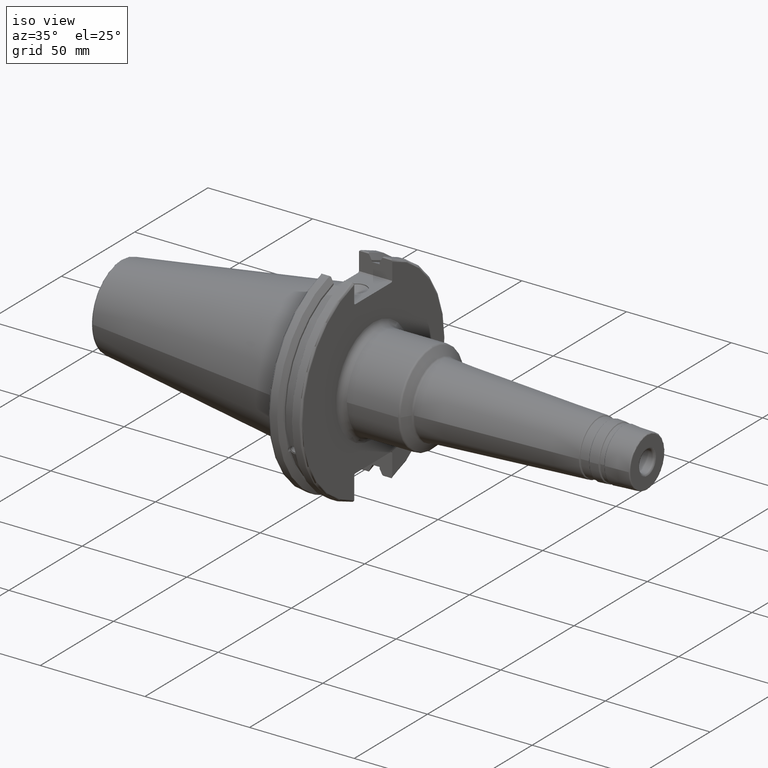
[diagram: clean part render]
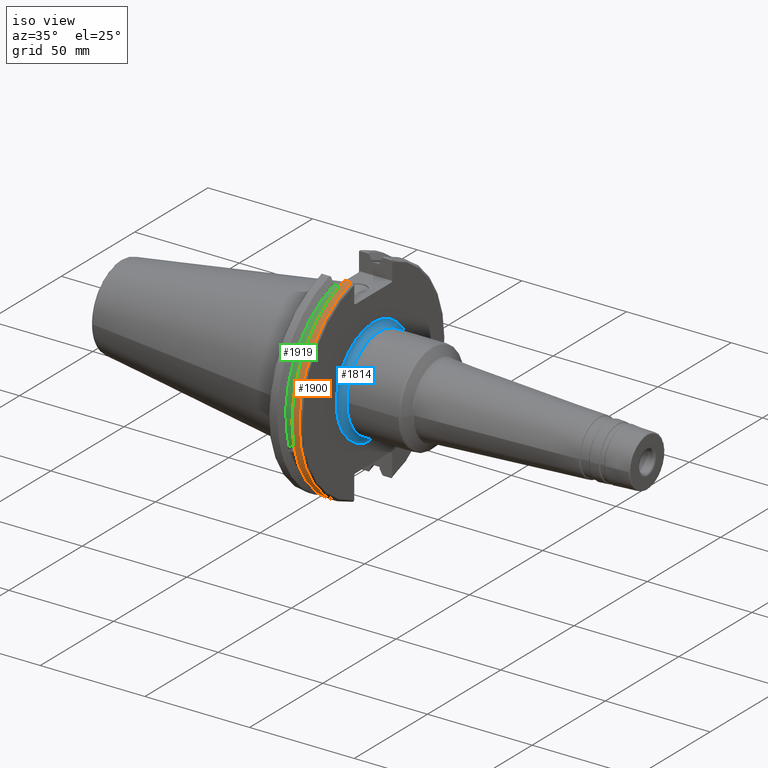
[diagram: same view with three faces highlighted in distinct colors, each labeled with its STEP entity id]
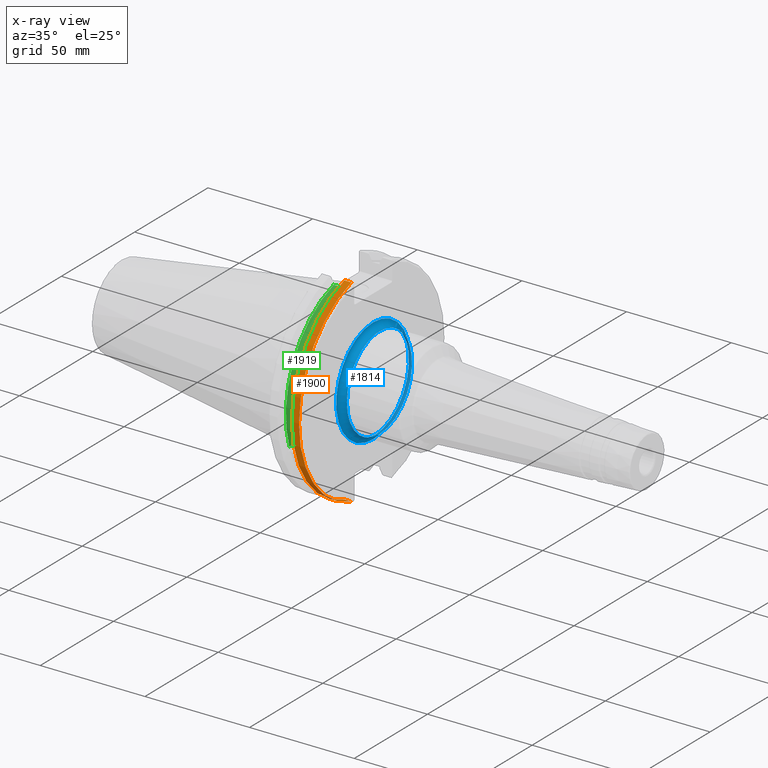
[diagram: x-ray of the same camera — body ghosted, the three highlighted faces saturated]
A machine part, iso view with three faces highlighted in distinct colors.
The next image is the same camera in x-ray (body ghosted, the three faces saturated) — at least one of them is partly hidden behind the body in this view.
Their STEP definitions:

[orange] entity #1900 — the highlighted cylindrical surface (partial cylindrical patch) has radius 49.2125 mm, axis along (1, 0, 0).
#245=LINE('',#3764,#348);
#246=LINE('',#3766,#349);
#348=VECTOR('',#2684,10.);
#349=VECTOR('',#2687,10.);
#378=CYLINDRICAL_SURFACE('',#2148,49.2125);
#471=FACE_OUTER_BOUND('',#596,.T.);
#596=EDGE_LOOP('',(#1704,#1705,#1706,#1707));
#697=CIRCLE('',#2065,49.2125);
#725=CIRCLE('',#2120,49.2125);
#841=VERTEX_POINT('',#3232);
#842=VERTEX_POINT('',#3236);
#906=VERTEX_POINT('',#3607);
#907=VERTEX_POINT('',#3616);
#1067=EDGE_CURVE('',#842,#841,#697,.T.);
#1156=EDGE_CURVE('',#906,#907,#725,.T.);
#1202=EDGE_CURVE('',#907,#841,#245,.T.);
#1203=EDGE_CURVE('',#842,#906,#246,.T.);
#1704=ORIENTED_EDGE('',*,*,#1156,.F.);
#1705=ORIENTED_EDGE('',*,*,#1203,.F.);
#1706=ORIENTED_EDGE('',*,*,#1067,.T.);
#1707=ORIENTED_EDGE('',*,*,#1202,.F.);
#1900=ADVANCED_FACE('',(#471),#378,.T.);
#2065=AXIS2_PLACEMENT_3D('',#3237,#2460,#2461);
#2120=AXIS2_PLACEMENT_3D('',#3617,#2605,#2606);
#2148=AXIS2_PLACEMENT_3D('',#3765,#2685,#2686);
#2460=DIRECTION('center_axis',(1.,0.,0.));
#2461=DIRECTION('ref_axis',(0.,0.,-1.));
#2605=DIRECTION('center_axis',(1.,0.,0.));
#2606=DIRECTION('ref_axis',(0.,-1.,1.60812264967664E-16));
#2684=DIRECTION('',(-1.,0.,0.));
#2685=DIRECTION('center_axis',(1.,0.,0.));
#2686=DIRECTION('ref_axis',(0.,-1.,1.22464679914735E-16));
#2687=DIRECTION('',(1.,0.,0.));
#3232=CARTESIAN_POINT('',(14.6602090340487,-13.4317035994433,-47.3440544806494));
#3236=CARTESIAN_POINT('',(14.6602090340487,-13.4317035994433,47.3440544806494));
#3237=CARTESIAN_POINT('Origin',(14.6602090340487,0.,0.));
#3607=CARTESIAN_POINT('',(18.05,-13.4317035994433,47.3440544806494));
#3616=CARTESIAN_POINT('',(18.05,-13.4317035994433,-47.3440544806494));
#3617=CARTESIAN_POINT('Origin',(18.05,0.,0.));
#3764=CARTESIAN_POINT('',(16.8551045170244,-13.4317035994433,-47.3440544806494));
#3765=CARTESIAN_POINT('Origin',(16.8551045170244,0.,0.));
#3766=CARTESIAN_POINT('',(16.8551045170244,-13.4317035994433,47.3440544806494));

[blue] entity #1814 — the highlighted toroidal blend (fillet) surface has major radius 25.25 mm and minor (blend) radius 3 mm.
#385=FACE_OUTER_BOUND('',#492,.T.);
#492=EDGE_LOOP('',(#1223,#1224,#1225,#1226,#1227));
#619=CIRCLE('',#1945,22.25);
#620=CIRCLE('',#1946,3.);
#621=CIRCLE('',#1947,25.25);
#622=CIRCLE('',#1948,22.25);
#746=VERTEX_POINT('',#2759);
#747=VERTEX_POINT('',#2760);
#748=VERTEX_POINT('',#2762);
#937=EDGE_CURVE('',#746,#747,#619,.T.);
#938=EDGE_CURVE('',#747,#748,#620,.T.);
#939=EDGE_CURVE('',#748,#748,#621,.T.);
#940=EDGE_CURVE('',#747,#746,#622,.T.);
#1223=ORIENTED_EDGE('',*,*,#937,.T.);
#1224=ORIENTED_EDGE('',*,*,#938,.T.);
#1225=ORIENTED_EDGE('',*,*,#939,.T.);
#1226=ORIENTED_EDGE('',*,*,#938,.F.);
#1227=ORIENTED_EDGE('',*,*,#940,.T.);
#1795=TOROIDAL_SURFACE('',#1944,25.25,3.);
#1814=ADVANCED_FACE('',(#385),#1795,.F.);
#1944=AXIS2_PLACEMENT_3D('',#2758,#2182,#2183);
#1945=AXIS2_PLACEMENT_3D('',#2761,#2184,#2185);
#1946=AXIS2_PLACEMENT_3D('',#2763,#2186,#2187);
#1947=AXIS2_PLACEMENT_3D('',#2764,#2188,#2189);
#1948=AXIS2_PLACEMENT_3D('',#2765,#2190,#2191);
#2182=DIRECTION('center_axis',(-1.,0.,0.));
#2183=DIRECTION('ref_axis',(0.,0.,1.));
#2184=DIRECTION('center_axis',(-1.,0.,0.));
#2185=DIRECTION('ref_axis',(0.,-1.,-1.22464679914735E-16));
#2186=DIRECTION('center_axis',(0.,-1.,1.22464679914735E-16));
#2187=DIRECTION('ref_axis',(0.,-1.22464679914735E-16,-1.));
#2188=DIRECTION('center_axis',(1.,0.,0.));
#2189=DIRECTION('ref_axis',(0.,-1.,-1.22464679914735E-16));
#2190=DIRECTION('center_axis',(-1.,0.,0.));
#2191=DIRECTION('ref_axis',(0.,-1.,-1.22464679914735E-16));
#2758=CARTESIAN_POINT('Origin',(22.05,0.,0.));
#2759=CARTESIAN_POINT('',(22.05,-22.25,-2.72483912810286E-15));
#2760=CARTESIAN_POINT('',(22.05,-2.72483912810286E-15,-22.25));
#2761=CARTESIAN_POINT('Origin',(22.05,0.,0.));
#2762=CARTESIAN_POINT('',(19.05,-3.09223316784707E-15,-25.25));
#2763=CARTESIAN_POINT('Origin',(22.05,-3.09223316784707E-15,-25.25));
#2764=CARTESIAN_POINT('Origin',(19.05,0.,0.));
#2765=CARTESIAN_POINT('Origin',(22.05,0.,0.));

[green] entity #1919 — the highlighted cylindrical surface (partial cylindrical patch) has radius 45.6435 mm, axis along (1, 0, 0).
#42=B_SPLINE_CURVE_WITH_KNOTS('',3,(#3150,#3151,#3152,#3153,#3154,#3155,
#3156,#3157,#3158,#3159,#3160,#3161,#3162,#3163),.UNSPECIFIED.,.F.,.F.,
(4,2,2,2,2,2,4),(0.40154831257669,0.474697095495631,0.553813286063443,0.632929476631254,
0.712045667199066,0.791161857766877,0.864310640685818),.UNSPECIFIED.);
#225=LINE('',#3644,#328);
#328=VECTOR('',#2612,10.);
#384=CYLINDRICAL_SURFACE('',#2177,45.6435);
#490=FACE_OUTER_BOUND('',#617,.T.);
#617=EDGE_LOOP('',(#1787,#1788,#1789,#1790));
#744=CIRCLE('',#2176,45.6435);
#745=CIRCLE('',#2178,45.6435);
#827=VERTEX_POINT('',#3147);
#828=VERTEX_POINT('',#3149);
#911=VERTEX_POINT('',#3641);
#912=VERTEX_POINT('',#3643);
#1050=EDGE_CURVE('',#828,#827,#42,.T.);
#1163=EDGE_CURVE('',#912,#911,#225,.T.);
#1221=EDGE_CURVE('',#911,#828,#744,.T.);
#1222=EDGE_CURVE('',#912,#827,#745,.T.);
#1787=ORIENTED_EDGE('',*,*,#1050,.T.);
#1788=ORIENTED_EDGE('',*,*,#1222,.F.);
#1789=ORIENTED_EDGE('',*,*,#1163,.T.);
#1790=ORIENTED_EDGE('',*,*,#1221,.T.);
#1919=ADVANCED_FACE('',(#490),#384,.T.);
#2176=AXIS2_PLACEMENT_3D('',#3810,#2749,#2750);
#2177=AXIS2_PLACEMENT_3D('',#3811,#2751,#2752);
#2178=AXIS2_PLACEMENT_3D('',#3812,#2753,#2754);
#2612=DIRECTION('',(-1.,0.,0.));
#2749=DIRECTION('center_axis',(1.,0.,0.));
#2750=DIRECTION('ref_axis',(0.,0.,-1.));
#2751=DIRECTION('center_axis',(1.,0.,0.));
#2752=DIRECTION('ref_axis',(0.,-0.888619069115281,0.458645996390125));
#2753=DIRECTION('center_axis',(1.,0.,0.));
#2754=DIRECTION('ref_axis',(0.,0.,-1.));
#3147=CARTESIAN_POINT('',(13.0491,-43.1779814500336,-14.7983448449669));
#3149=CARTESIAN_POINT('',(9.2191,-43.1779814500336,-14.7983448449669));
#3150=CARTESIAN_POINT('Ctrl Pts',(9.2191,-43.1779814500335,-14.7983448449669));
#3151=CARTESIAN_POINT('Ctrl Pts',(9.32532177598176,-43.2545173750974,-14.5750315766731));
#3152=CARTESIAN_POINT('Ctrl Pts',(9.47680807557665,-43.3223492818373,-14.3712521044637));
#3153=CARTESIAN_POINT('Ctrl Pts',(9.83560503400179,-43.4340904392251,-14.0300988117073));
#3154=CARTESIAN_POINT('Ctrl Pts',(10.0717203280543,-43.4832903960863,-13.8760243976176));
#3155=CARTESIAN_POINT('Ctrl Pts',(10.5891059167872,-43.54802519266,-13.6715068146718));
#3156=CARTESIAN_POINT('Ctrl Pts',(10.870379364774,-43.5636826100883,-13.6211104428929));
#3157=CARTESIAN_POINT('Ctrl Pts',(11.397820635226,-43.5636826100883,-13.6211104428929));
#3158=CARTESIAN_POINT('Ctrl Pts',(11.6790940832128,-43.54802519266,-13.6715068146718));
#3159=CARTESIAN_POINT('Ctrl Pts',(12.1964796719457,-43.4832903960863,-13.8760243976176));
#3160=CARTESIAN_POINT('Ctrl Pts',(12.4325949659982,-43.4340904392251,-14.0300988117073));
#3161=CARTESIAN_POINT('Ctrl Pts',(12.7913919244233,-43.3223492818373,-14.3712521044637));
#3162=CARTESIAN_POINT('Ctrl Pts',(12.9428782240182,-43.2545173750974,-14.5750315766731));
#3163=CARTESIAN_POINT('Ctrl Pts',(13.0491,-43.1779814500335,-14.7983448449669));
#3641=CARTESIAN_POINT('',(9.2191,-12.95,43.7678716897452));
#3643=CARTESIAN_POINT('',(13.0491,-12.95,43.7678716897452));
#3644=CARTESIAN_POINT('',(11.1341,-12.95,43.7678716897452));
#3810=CARTESIAN_POINT('Origin',(9.2191,0.,0.));
#3811=CARTESIAN_POINT('Origin',(11.1341,0.,0.));
#3812=CARTESIAN_POINT('Origin',(13.0491,0.,0.));